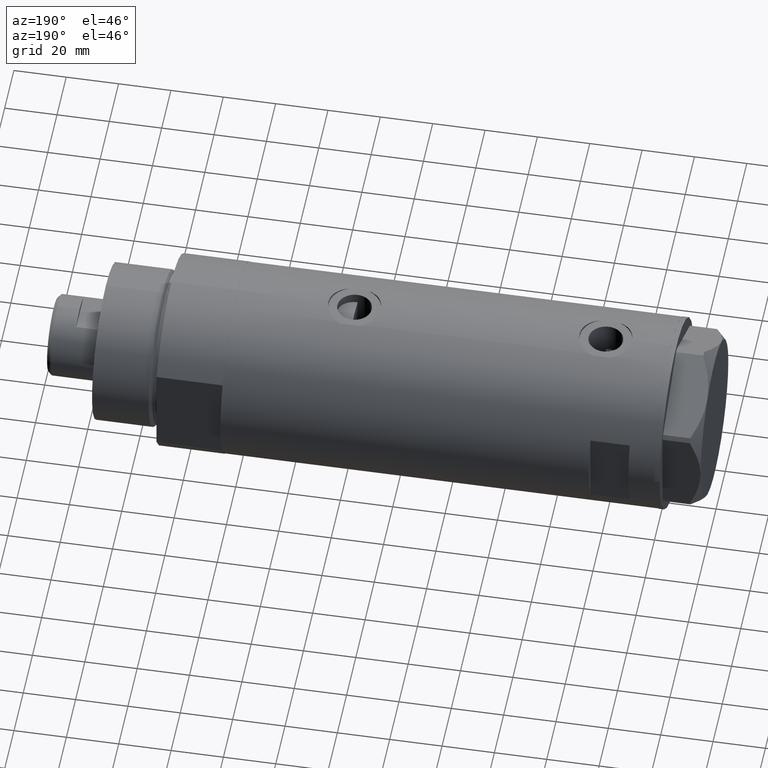
[diagram: clean part render]
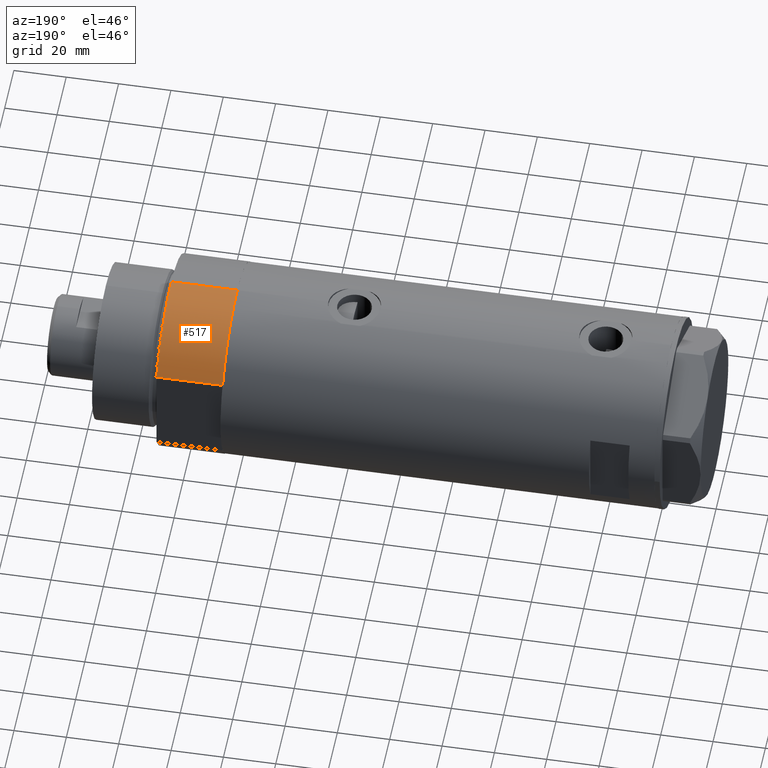
[diagram: same view with one face highlighted and labeled with its STEP entity id]
A machine part, auxiliary view. The second image highlights one B-rep face of the part: STEP entity #517.
In plain terms, the highlighted cylindrical surface (partial cylindrical patch) has radius 36.5 mm, axis along (-1, -0, 0).
Its self-contained STEP definition (entity closure, byte-faithful):
#25 = DIRECTION ( 'NONE',  ( -0.000000000000000000, -0.000000000000000000, -1.000000000000000000 ) ) ;
#118 = CIRCLE ( 'NONE', #3579, 36.50000000000000000 ) ;
#122 = VECTOR ( 'NONE', #25, 1000.000000000000000 ) ;
#142 = VERTEX_POINT ( 'NONE', #991 ) ;
#272 = EDGE_CURVE ( 'NONE', #142, #4337, #118, .T. ) ;
#328 = DIRECTION ( 'NONE',  ( -1.000000000000000000, 0.000000000000000000, 0.000000000000000000 ) ) ;
#517 = ADVANCED_FACE ( 'NONE', ( #4065 ), #2381, .T. ) ;
#760 = DIRECTION ( 'NONE',  ( 1.000000000000000000, 0.000000000000000000, 0.000000000000000000 ) ) ;
#818 = VERTEX_POINT ( 'NONE', #3115 ) ;
#991 = CARTESIAN_POINT ( 'NONE',  ( -17.55704986607943141, 32.00000000000000000, 0.000000000000000000 ) ) ;
#1033 = CARTESIAN_POINT ( 'NONE',  ( 0.000000000000000000, 0.000000000000000000, 25.19999999999999929 ) ) ;
#1055 = CARTESIAN_POINT ( 'NONE',  ( 0.000000000000000000, 0.000000000000000000, 25.19999999999999929 ) ) ;
#1373 = EDGE_CURVE ( 'NONE', #142, #818, #3755, .T. ) ;
#1381 = ORIENTED_EDGE ( 'NONE', *, *, #2315, .F. ) ;
#1541 = ORIENTED_EDGE ( 'NONE', *, *, #1373, .F. ) ;
#1715 = EDGE_LOOP ( 'NONE', ( #1381, #2992, #1541, #3493 ) ) ;
#2084 = LINE ( 'NONE', #2102, #122 ) ;
#2094 = CARTESIAN_POINT ( 'NONE',  ( -36.50000000000000000, 0.000000000000000000, 0.000000000000000000 ) ) ;
#2102 = CARTESIAN_POINT ( 'NONE',  ( -36.50000000000000000, 0.000000000000000000, 25.19999999999999929 ) ) ;
#2315 = EDGE_CURVE ( 'NONE', #2597, #4337, #2084, .T. ) ;
#2381 = CYLINDRICAL_SURFACE ( 'NONE', #3007, 36.50000000000000000 ) ;
#2406 = DIRECTION ( 'NONE',  ( 0.000000000000000000, 0.000000000000000000, 1.000000000000000000 ) ) ;
#2597 = VERTEX_POINT ( 'NONE', #2668 ) ;
#2668 = CARTESIAN_POINT ( 'NONE',  ( -36.50000000000000000, 0.000000000000000000, 25.19999999999999929 ) ) ;
#2675 = DIRECTION ( 'NONE',  ( -0.000000000000000000, -0.000000000000000000, 1.000000000000000000 ) ) ;
#2804 = DIRECTION ( 'NONE',  ( 1.000000000000000000, 0.000000000000000000, 0.000000000000000000 ) ) ;
#2824 = CARTESIAN_POINT ( 'NONE',  ( 0.000000000000000000, 0.000000000000000000, 0.000000000000000000 ) ) ;
#2992 = ORIENTED_EDGE ( 'NONE', *, *, #4033, .F. ) ;
#3007 = AXIS2_PLACEMENT_3D ( 'NONE', #1033, #4048, #328 ) ;
#3115 = CARTESIAN_POINT ( 'NONE',  ( -17.55704986607943496, 32.00000000000000000, 25.19999999999999929 ) ) ;
#3194 = DIRECTION ( 'NONE',  ( 0.000000000000000000, 0.000000000000000000, 1.000000000000000000 ) ) ;
#3493 = ORIENTED_EDGE ( 'NONE', *, *, #272, .T. ) ;
#3579 = AXIS2_PLACEMENT_3D ( 'NONE', #2824, #3194, #2804 ) ;
#3724 = CARTESIAN_POINT ( 'NONE',  ( -17.55704986607943141, 32.00000000000000000, 0.000000000000000000 ) ) ;
#3755 = LINE ( 'NONE', #3724, #4161 ) ;
#3801 = CIRCLE ( 'NONE', #4167, 36.50000000000000000 ) ;
#4033 = EDGE_CURVE ( 'NONE', #818, #2597, #3801, .T. ) ;
#4048 = DIRECTION ( 'NONE',  ( -0.000000000000000000, -0.000000000000000000, -1.000000000000000000 ) ) ;
#4065 = FACE_OUTER_BOUND ( 'NONE', #1715, .T. ) ;
#4161 = VECTOR ( 'NONE', #2675, 1000.000000000000000 ) ;
#4167 = AXIS2_PLACEMENT_3D ( 'NONE', #1055, #2406, #760 ) ;
#4337 = VERTEX_POINT ( 'NONE', #2094 ) ;